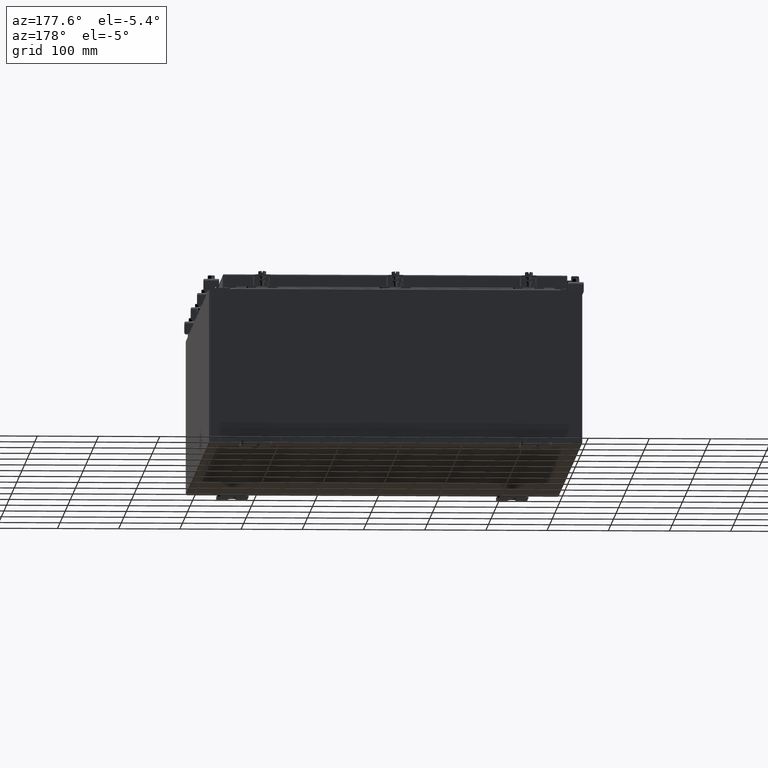
[diagram: clean part render]
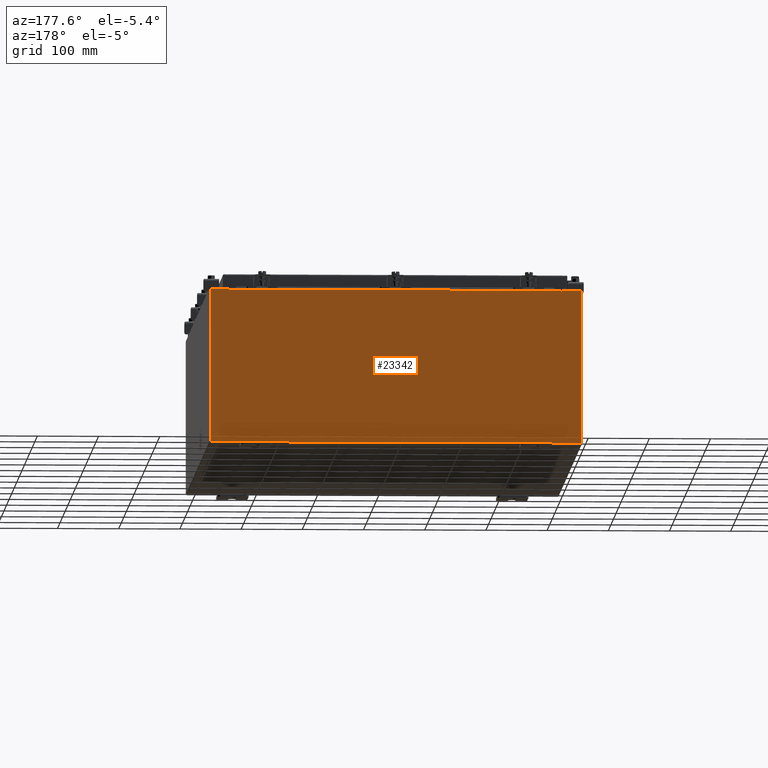
[diagram: same view with one face highlighted and labeled with its STEP entity id]
A machine part, auxiliary view. The second image highlights one B-rep face of the part: STEP entity #23342.
In plain terms, the highlighted planar face has unit normal (0, -1, 0).
Its self-contained STEP definition (entity closure, byte-faithful):
#64 = VERTEX_POINT ( 'NONE', #23101 ) ;
#149 = VERTEX_POINT ( 'NONE', #21590 ) ;
#427 = DIRECTION ( 'NONE',  ( -0.0000000000000000000, -0.0000000000000000000, 1.000000000000000000 ) ) ;
#593 = ORIENTED_EDGE ( 'NONE', *, *, #3624, .T. ) ;
#930 = VECTOR ( 'NONE', #1466, 39.37007874015748100 ) ;
#1141 = LINE ( 'NONE', #4491, #14362 ) ;
#1466 = DIRECTION ( 'NONE',  ( 0.0000000000000000000, 0.0000000000000000000, -1.000000000000000000 ) ) ;
#1653 = DIRECTION ( 'NONE',  ( 0.0000000000000000000, -0.0000000000000000000, -1.000000000000000000 ) ) ;
#1660 = DIRECTION ( 'NONE',  ( 0.0000000000000000000, 0.0000000000000000000, 1.000000000000000000 ) ) ;
#1662 = DIRECTION ( 'NONE',  ( 1.000000000000000000, 0.0000000000000000000, 0.0000000000000000000 ) ) ;
#1801 = CARTESIAN_POINT ( 'NONE',  ( 10.67454999999979000, -0.0000000000000000000, -4.633366117301795800E-013 ) ) ;
#1992 = EDGE_CURVE ( 'NONE', #8077, #2767, #20957, .T. ) ;
#2067 = CARTESIAN_POINT ( 'NONE',  ( -11.92530000000000000, 0.0000000000000000000, 4.925300000000000000 ) ) ;
#2271 = DIRECTION ( 'NONE',  ( 0.0000000000000000000, 0.0000000000000000000, 1.000000000000000000 ) ) ;
#2463 = CARTESIAN_POINT ( 'NONE',  ( -11.92530000000000000, 0.0000000000000000000, 4.925300000000000000 ) ) ;
#2540 = AXIS2_PLACEMENT_3D ( 'NONE', #20902, #20883, #20816 ) ;
#2699 = CARTESIAN_POINT ( 'NONE',  ( 11.92530000000000000, 0.0000000000000000000, 4.925300000000000000 ) ) ;
#2706 = LINE ( 'NONE', #23002, #11707 ) ;
#2767 = VERTEX_POINT ( 'NONE', #11133 ) ;
#2883 = ORIENTED_EDGE ( 'NONE', *, *, #12839, .T. ) ;
#3053 = DIRECTION ( 'NONE',  ( 1.000000000000000000, 0.0000000000000000000, 0.0000000000000000000 ) ) ;
#3607 = ORIENTED_EDGE ( 'NONE', *, *, #21183, .F. ) ;
#3624 = EDGE_CURVE ( 'NONE', #13084, #20772, #13089, .T. ) ;
#4075 = FACE_OUTER_BOUND ( 'NONE', #6072, .T. ) ;
#4279 = VECTOR ( 'NONE', #18939, 39.37007874015748100 ) ;
#4491 = CARTESIAN_POINT ( 'NONE',  ( -11.92530000000000000, 0.0000000000000000000, 4.925300000000000000 ) ) ;
#4688 = CARTESIAN_POINT ( 'NONE',  ( -10.65587500000000200, 0.0000000000000000000, 4.874950000000000100 ) ) ;
#4833 = VERTEX_POINT ( 'NONE', #17781 ) ;
#5110 = CARTESIAN_POINT ( 'NONE',  ( -11.92530000000000000, 0.0000000000000000000, 4.925300000000000000 ) ) ;
#5182 = ORIENTED_EDGE ( 'NONE', *, *, #14497, .F. ) ;
#5450 = VERTEX_POINT ( 'NONE', #6642 ) ;
#5700 = LINE ( 'NONE', #2699, #930 ) ;
#6037 = EDGE_CURVE ( 'NONE', #16660, #7941, #5700, .T. ) ;
#6072 = EDGE_LOOP ( 'NONE', ( #3607, #7816, #7885, #2883, #17480, #20703, #5182, #21053, #6112, #6688, #593, #18176 ) ) ;
#6112 = ORIENTED_EDGE ( 'NONE', *, *, #6037, .T. ) ;
#6270 = CIRCLE ( 'NONE', #18372, 0.01867499999999949400 ) ;
#6474 = DIRECTION ( 'NONE',  ( 0.0000000000000000000, 0.0000000000000000000, -1.000000000000000000 ) ) ;
#6642 = CARTESIAN_POINT ( 'NONE',  ( -10.67455000000000200, 0.0000000000000000000, 4.925300000000000000 ) ) ;
#6688 = ORIENTED_EDGE ( 'NONE', *, *, #10951, .T. ) ;
#6747 = DIRECTION ( 'NONE',  ( -1.000000000000000000, -0.0000000000000000000, -0.0000000000000000000 ) ) ;
#6798 = EDGE_CURVE ( 'NONE', #21327, #149, #9058, .T. ) ;
#6909 = VERTEX_POINT ( 'NONE', #13357 ) ;
#6927 = DIRECTION ( 'NONE',  ( 1.000000000000000000, 0.0000000000000000000, 0.0000000000000000000 ) ) ;
#7739 = VECTOR ( 'NONE', #427, 39.37007874015748100 ) ;
#7816 = ORIENTED_EDGE ( 'NONE', *, *, #15473, .F. ) ;
#7868 = EDGE_CURVE ( 'NONE', #20772, #5450, #1141, .T. ) ;
#7885 = ORIENTED_EDGE ( 'NONE', *, *, #6798, .F. ) ;
#7941 = VERTEX_POINT ( 'NONE', #17779 ) ;
#8077 = VERTEX_POINT ( 'NONE', #19238 ) ;
#8283 = LINE ( 'NONE', #1801, #13051 ) ;
#9058 = LINE ( 'NONE', #18913, #4279 ) ;
#10617 = PLANE ( 'NONE',  #20683 ) ;
#10936 = CARTESIAN_POINT ( 'NONE',  ( -10.63720000000000400, -7.171100983368691200E-016, 4.912300000000000100 ) ) ;
#10951 = EDGE_CURVE ( 'NONE', #7941, #13084, #2706, .T. ) ;
#11133 = CARTESIAN_POINT ( 'NONE',  ( 10.63720000000000400, 0.0000000000000000000, 4.874950000000000100 ) ) ;
#11707 = VECTOR ( 'NONE', #6747, 39.37007874015748100 ) ;
#12054 = LINE ( 'NONE', #23249, #21090 ) ;
#12418 = DIRECTION ( 'NONE',  ( 0.0000000000000000000, -1.000000000000000000, 0.0000000000000000000 ) ) ;
#12612 = VECTOR ( 'NONE', #6927, 39.37007874015748100 ) ;
#12635 = DIRECTION ( 'NONE',  ( -4.340572780400004900E-014, 0.0000000000000000000, -1.000000000000000000 ) ) ;
#12839 = EDGE_CURVE ( 'NONE', #21327, #6909, #21596, .T. ) ;
#13051 = VECTOR ( 'NONE', #12635, 39.37007874015748100 ) ;
#13084 = VERTEX_POINT ( 'NONE', #20464 ) ;
#13089 = LINE ( 'NONE', #2067, #7739 ) ;
#13357 = CARTESIAN_POINT ( 'NONE',  ( 10.63720000000000400, 0.0000000000000000000, 4.912300000000000100 ) ) ;
#14088 = VECTOR ( 'NONE', #2271, 39.37007874015748100 ) ;
#14362 = VECTOR ( 'NONE', #3053, 39.37007874015748100 ) ;
#14497 = EDGE_CURVE ( 'NONE', #4833, #8077, #8283, .T. ) ;
#14849 = CARTESIAN_POINT ( 'NONE',  ( 11.92530000000000000, 0.0000000000000000000, 4.925300000000000000 ) ) ;
#14875 = CARTESIAN_POINT ( 'NONE',  ( 10.63720000000000400, 0.0000000000000000000, 0.0000000000000000000 ) ) ;
#15473 = EDGE_CURVE ( 'NONE', #149, #64, #6270, .T. ) ;
#16660 = VERTEX_POINT ( 'NONE', #14849 ) ;
#16802 = VECTOR ( 'NONE', #1662, 39.37007874015748100 ) ;
#17285 = DIRECTION ( 'NONE',  ( -0.0000000000000000000, 1.000000000000000000, -0.0000000000000000000 ) ) ;
#17430 = LINE ( 'NONE', #5110, #12612 ) ;
#17480 = ORIENTED_EDGE ( 'NONE', *, *, #18145, .F. ) ;
#17779 = CARTESIAN_POINT ( 'NONE',  ( 11.92530000000000000, 0.0000000000000000000, -4.925300000000000000 ) ) ;
#17781 = CARTESIAN_POINT ( 'NONE',  ( 10.67455000000000200, 0.0000000000000000000, 4.925300000000000000 ) ) ;
#18145 = EDGE_CURVE ( 'NONE', #2767, #6909, #19489, .T. ) ;
#18176 = ORIENTED_EDGE ( 'NONE', *, *, #7868, .T. ) ;
#18372 = AXIS2_PLACEMENT_3D ( 'NONE', #4688, #17285, #6474 ) ;
#18913 = CARTESIAN_POINT ( 'NONE',  ( -10.63720000000000400, -0.0000000000000000000, 0.0000000000000000000 ) ) ;
#18939 = DIRECTION ( 'NONE',  ( 0.0000000000000000000, 0.0000000000000000000, -1.000000000000000000 ) ) ;
#19238 = CARTESIAN_POINT ( 'NONE',  ( 10.67455000000000200, 0.0000000000000000000, 4.874950000000000100 ) ) ;
#19489 = LINE ( 'NONE', #14875, #14088 ) ;
#19655 = CARTESIAN_POINT ( 'NONE',  ( -10.63720000000000400, -7.171100983368691200E-016, 4.912300000000000100 ) ) ;
#20464 = CARTESIAN_POINT ( 'NONE',  ( -11.92530000000000000, 0.0000000000000000000, -4.925300000000000000 ) ) ;
#20683 = AXIS2_PLACEMENT_3D ( 'NONE', #23243, #12418, #1653 ) ;
#20703 = ORIENTED_EDGE ( 'NONE', *, *, #1992, .F. ) ;
#20772 = VERTEX_POINT ( 'NONE', #2463 ) ;
#20816 = DIRECTION ( 'NONE',  ( 0.0000000000000000000, 0.0000000000000000000, -1.000000000000000000 ) ) ;
#20883 = DIRECTION ( 'NONE',  ( -0.0000000000000000000, 1.000000000000000000, -0.0000000000000000000 ) ) ;
#20902 = CARTESIAN_POINT ( 'NONE',  ( 10.65587500000000200, 0.0000000000000000000, 4.874950000000000100 ) ) ;
#20957 = CIRCLE ( 'NONE', #2540, 0.01867499999999949400 ) ;
#21053 = ORIENTED_EDGE ( 'NONE', *, *, #21161, .T. ) ;
#21090 = VECTOR ( 'NONE', #1660, 39.37007874015748100 ) ;
#21161 = EDGE_CURVE ( 'NONE', #4833, #16660, #17430, .T. ) ;
#21183 = EDGE_CURVE ( 'NONE', #64, #5450, #12054, .T. ) ;
#21327 = VERTEX_POINT ( 'NONE', #10936 ) ;
#21590 = CARTESIAN_POINT ( 'NONE',  ( -10.63720000000000400, -0.0000000000000000000, 4.874950000000000100 ) ) ;
#21596 = LINE ( 'NONE', #19655, #16802 ) ;
#23002 = CARTESIAN_POINT ( 'NONE',  ( -11.92530000000000000, 0.0000000000000000000, -4.925300000000000000 ) ) ;
#23101 = CARTESIAN_POINT ( 'NONE',  ( -10.67455000000000200, 0.0000000000000000000, 4.874950000000000100 ) ) ;
#23243 = CARTESIAN_POINT ( 'NONE',  ( 0.0000000000000000000, 0.0000000000000000000, 0.0000000000000000000 ) ) ;
#23249 = CARTESIAN_POINT ( 'NONE',  ( -10.67455000000000200, -0.0000000000000000000, 0.0000000000000000000 ) ) ;
#23342 = ADVANCED_FACE ( 'NONE', ( #4075 ), #10617, .F. ) ;